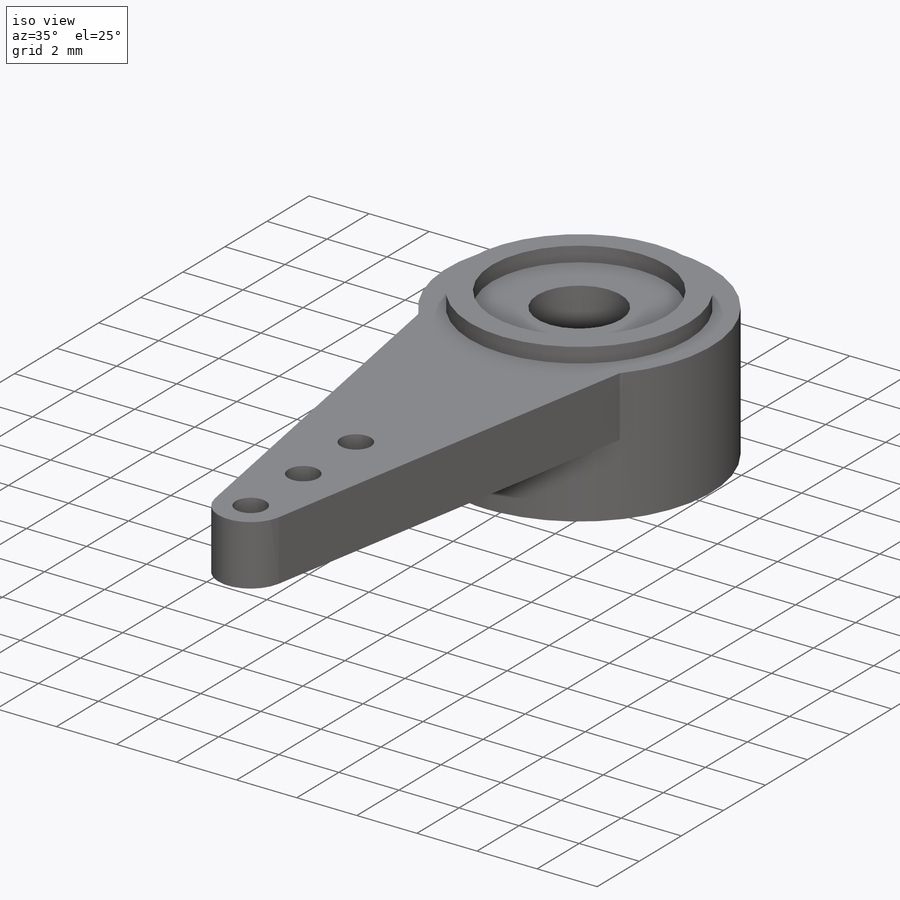
[diagram: iso view]
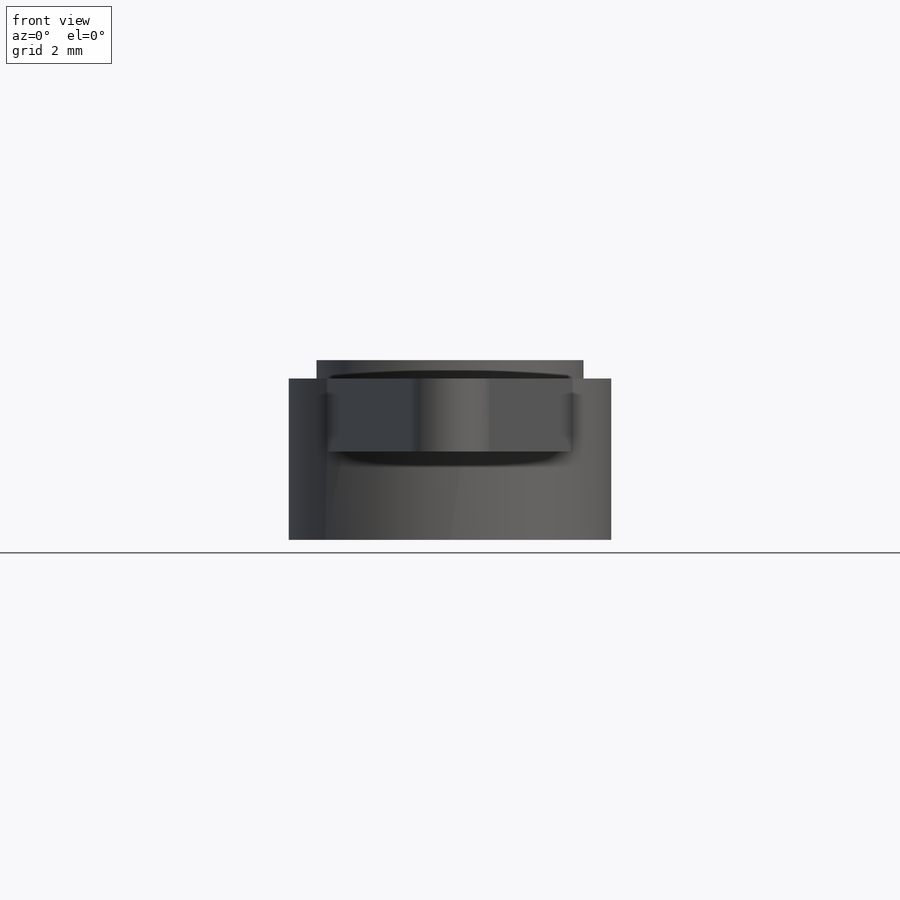
[diagram: front view]
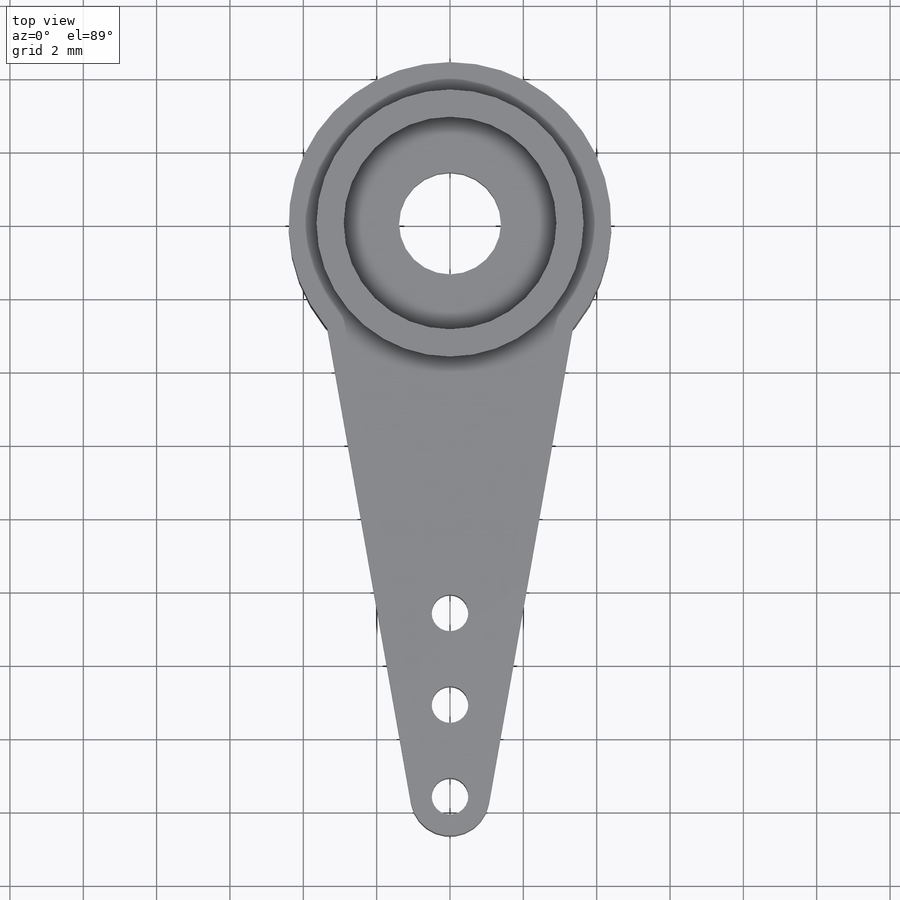
[diagram: top view]
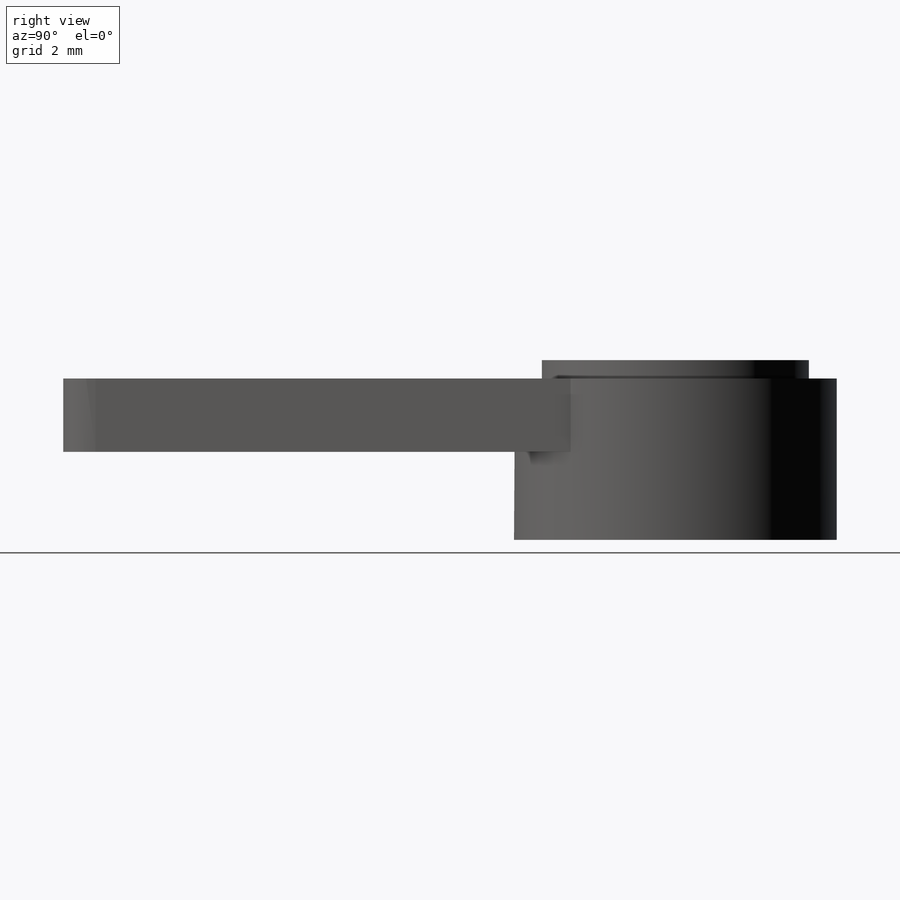
[diagram: right view]
SOLIDWORKS PART (.sldprt)
format: sldprt  version: not decoded by parser v0  size: 391,168 bytes
history: native  units: mm
features: sketch x10, cut_extrude x5, extrude x3, material x1, pattern_linear x1, mirror x1, pattern_circular x1 (+13 scaffold rows collapsed)
feature tree (35):
  scaffold x13  (default folders/planes/origin — collapsed)
  material  "Polyethylene Cross-Linked"
  sketch  "Sketch1"  dims[D1=8.8mm]
  extrude  "Boss-Extrude1"  Depth=4.4mm
  sketch  "Sketch2"  dims[c1.D1=2.16mm c1.D2=16.7mm c1.D3=~15.110883mm c2.D3=~20.80217deg c3.D3=~15.110883mm c4.D3=~20.80217deg c5.D3=15.62mm c6.D3=~10.401085deg c7.D3=15.62mm c8.D3=15.0deg c9.D3=15.62mm c10.D3=~10.401085deg c11.D3=15.62mm c12.D3=10.0deg]
  extrude  "Boss-Extrude2"  Depth=2mm
  sketch  "Sketch3"  dims[D1=7.28mm D2=5.8mm]
  extrude  "Boss-Extrude3"  Depth=0.5mm
  sketch  "Sketch4"  dims[D1=2.78mm]
  cut_extrude  "Cut-Extrude1"  [1 undecoded]
  sketch  "Sketch5"  dims[D1=1.0mm]
  cut_extrude  "Cut-Extrude2"  [1 undecoded]
  sketch  "Sketch6"
  pattern_linear  "LPattern1"  Count1=3 Count2=1 Spacing1=2.5mm Spacing2=10mm
  mirror  "Mirror1"
  sketch  "Sketch7"  dims[c1.D1=5.8mm c1.D2=5.2mm c1.D3=~0.420606mm c2.D3=80.0deg c2.D4=~0.077786mm c3.D4=80.0deg c4.D4=~2.599519mm c5.D4=2.24deg]
  sketch  "Sketch8"  dims[c1.D1=5.8mm c1.D2=5.2mm c1.D3=~0.319735mm c2.D3=80.0deg c2.D1=0.3mm]
  cut_extrude  "Cut-Extrude4"  Depth=3mm
  pattern_circular  "CirPattern2"  Count=26 Angle=360deg
  sketch  "Sketch9"
  cut_extrude  "Cut-Extrude5"  Depth=3mm
  sketch  "Horn Trim Sketch"
  cut_extrude  "Cut-Extrude6"  [1 undecoded]
decode coverage: 14 of 21 modeling features carry decoded parameters
note: ~ marks probable driven/reference dimensions
note: 3 parameter values undecoded
summary: no parameter record found for 3 features
note: suppression state not decoded; provenance and decode notes live in map.json
